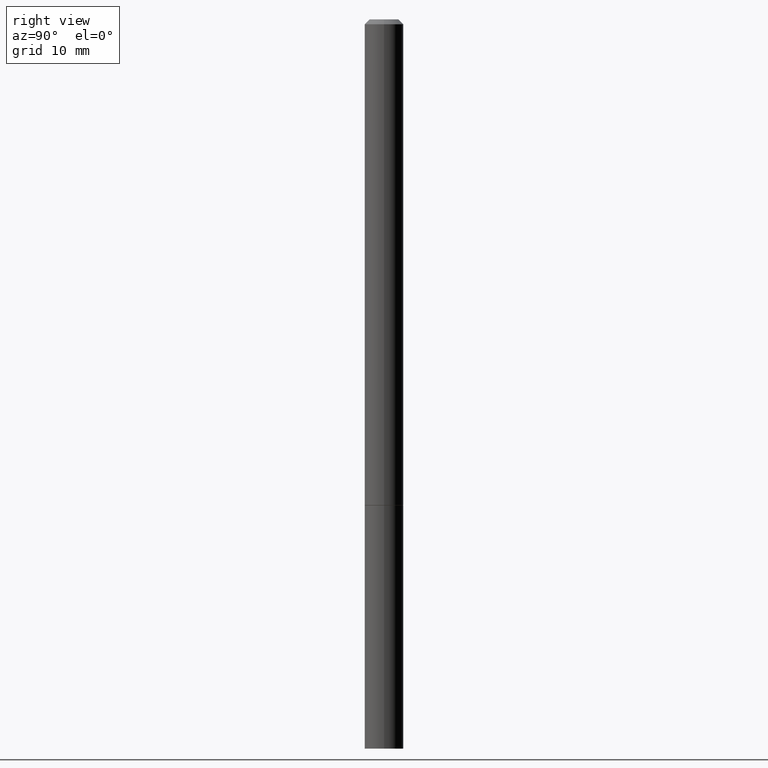
[diagram: clean part render]
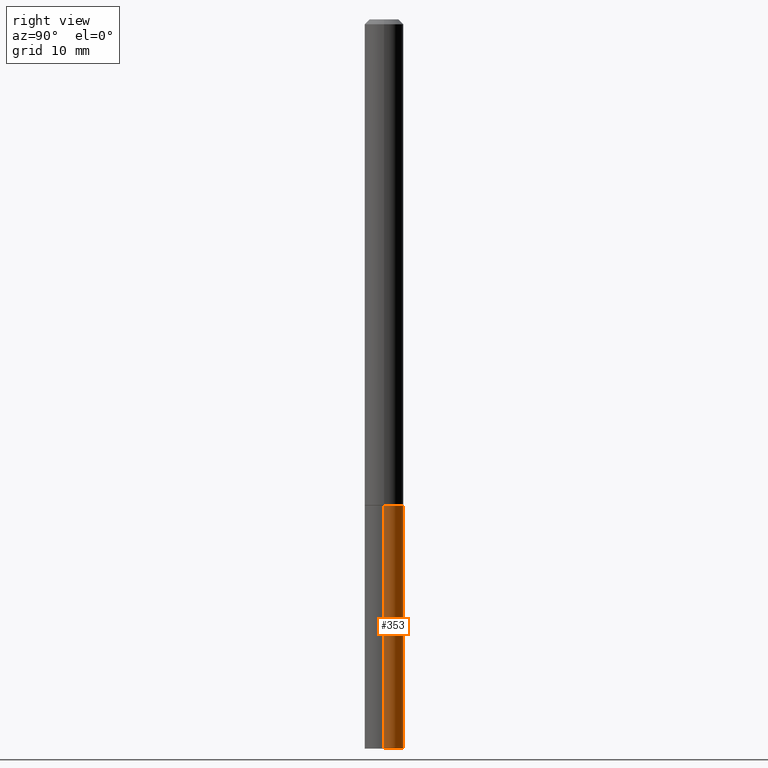
[diagram: same view with one face highlighted and labeled with its STEP entity id]
A machine part, right view. The second image highlights one B-rep face of the part: STEP entity #353.
In plain terms, the highlighted cylindrical surface (edge-blend (fillet) strip) has radius 2.0002 mm, axis along (-0, 0, 1).
Its self-contained STEP definition (entity closure, byte-faithful):
#3 = AXIS2_PLACEMENT_3D ( 'NONE', #85, #315, #233 ) ;
#14 = VERTEX_POINT ( 'NONE', #362 ) ;
#19 = EDGE_CURVE ( 'NONE', #14, #48, #20, .T. ) ;
#20 = LINE ( 'NONE', #168, #198 ) ;
#38 = CARTESIAN_POINT ( 'NONE',  ( 4.813905344975440714E-29, -6.872981015512730918E-15, -1.968499999999999694 ) ) ;
#48 = VERTEX_POINT ( 'NONE', #339 ) ;
#49 = VERTEX_POINT ( 'NONE', #359 ) ;
#51 = ORIENTED_EDGE ( 'NONE', *, *, #19, .T. ) ;
#58 = DIRECTION ( 'NONE',  ( -2.445468806185136597E-29, 3.491481338843145583E-15, 1.000000000000000000 ) ) ;
#60 = AXIS2_PLACEMENT_3D ( 'NONE', #66, #131, #247 ) ;
#66 = CARTESIAN_POINT ( 'NONE',  ( 0.000000000000000000, 0.000000000000000000, 0.000000000000000000 ) ) ;
#78 = DIRECTION ( 'NONE',  ( -2.445468806185136877E-29, 3.491481338843145188E-15, 1.000000000000000000 ) ) ;
#85 = CARTESIAN_POINT ( 'NONE',  ( 7.220980290903470182E-29, -1.030964609733603853E-14, -2.952799999999999869 ) ) ;
#98 = FACE_OUTER_BOUND ( 'NONE', #219, .T. ) ;
#106 = EDGE_CURVE ( 'NONE', #49, #355, #336, .T. ) ;
#109 = DIRECTION ( 'NONE',  ( -2.445468806185136877E-29, 3.491481338843145188E-15, 1.000000000000000000 ) ) ;
#118 = DIRECTION ( 'NONE',  ( 1.000000000000000000, -6.982962677686261977E-15, 0.000000000000000000 ) ) ;
#124 = CARTESIAN_POINT ( 'NONE',  ( 0.07875000000000000056, -7.422889326380523475E-15, -1.968499999999999694 ) ) ;
#130 = ORIENTED_EDGE ( 'NONE', *, *, #252, .F. ) ;
#131 = DIRECTION ( 'NONE',  ( -2.445468806185136597E-29, 3.491481338843145583E-15, 1.000000000000000000 ) ) ;
#133 = CIRCLE ( 'NONE', #3, 0.07875000000000000056 ) ;
#138 = VECTOR ( 'NONE', #78, 39.37007874015748143 ) ;
#161 = CIRCLE ( 'NONE', #237, 0.07875000000000000056 ) ;
#168 = CARTESIAN_POINT ( 'NONE',  ( -0.07875000000000000056, 5.595524044110789003E-16, -3.873661383575737792E-30 ) ) ;
#181 = EDGE_CURVE ( 'NONE', #49, #14, #133, .T. ) ;
#196 = ORIENTED_EDGE ( 'NONE', *, *, #181, .T. ) ;
#198 = VECTOR ( 'NONE', #109, 39.37007874015748143 ) ;
#219 = EDGE_LOOP ( 'NONE', ( #196, #51, #130, #356 ) ) ;
#233 = DIRECTION ( 'NONE',  ( 1.000000000000000000, -6.982962677686261977E-15, 0.000000000000000000 ) ) ;
#237 = AXIS2_PLACEMENT_3D ( 'NONE', #38, #58, #118 ) ;
#245 = CYLINDRICAL_SURFACE ( 'NONE', #60, 0.07875000000000000056 ) ;
#247 = DIRECTION ( 'NONE',  ( 1.000000000000000000, -6.982962677686265922E-15, 4.876176775795935232E-29 ) ) ;
#250 = CARTESIAN_POINT ( 'NONE',  ( 0.07875000000000000056, -5.499083108677934443E-16, 3.839989210939299016E-30 ) ) ;
#252 = EDGE_CURVE ( 'NONE', #355, #48, #161, .T. ) ;
#315 = DIRECTION ( 'NONE',  ( -2.445468806185136597E-29, 3.491481338843145583E-15, 1.000000000000000000 ) ) ;
#336 = LINE ( 'NONE', #250, #138 ) ;
#339 = CARTESIAN_POINT ( 'NONE',  ( -0.07875000000000000056, -8.031761152013305527E-15, -1.968499999999999694 ) ) ;
#353 = ADVANCED_FACE ( 'NONE', ( #98 ), #245, .T. ) ;
#355 = VERTEX_POINT ( 'NONE', #124 ) ;
#356 = ORIENTED_EDGE ( 'NONE', *, *, #106, .F. ) ;
#359 = CARTESIAN_POINT ( 'NONE',  ( 0.07875000000000000056, -1.085955440820383187E-14, -2.952799999999999869 ) ) ;
#362 = CARTESIAN_POINT ( 'NONE',  ( -0.07875000000000000056, -8.031761152013305527E-15, -2.952799999999999869 ) ) ;